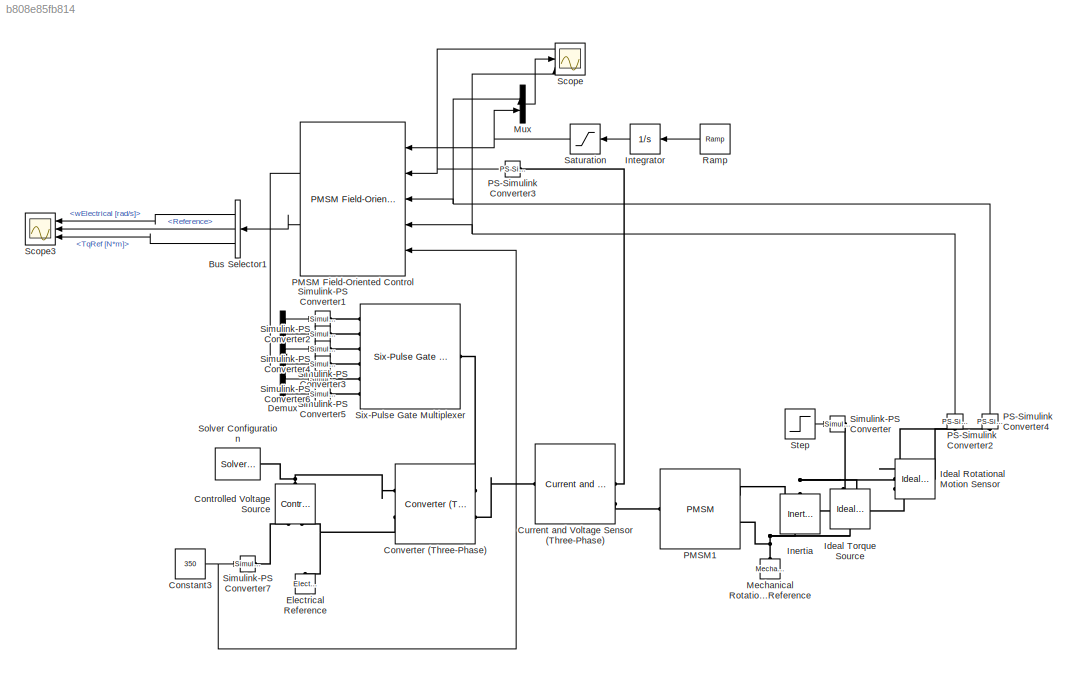
MODEL slx_b808e85fb814
KIND model
CONFIG AbsTol = auto
CONFIG EnableMultiTasking = off
CONFIG FixedStep = auto
CONFIG MaxStep = auto
CONFIG MinStep = auto
CONFIG RelTol = 1e-3
CONFIG SampleTimeConstraint = Unconstrained
CONFIG SolverName = VariableStepAuto
CONFIG StartTime = 0.0
CONFIG StopTime = 2
BLOCK [BusSelector] Bus Selector1
  NameLocation = top
  OutputSignals = wElectrical [rad/s],Reference,TqRef [N*m]
  Ports = [1, 3]
BLOCK [Constant] Constant3
  Value = 350
BLOCK [Reference] Controlled Voltage Source  REF=fl_lib/Electrical/Electrical Sources/Controlled Voltage
Source
  NameLocation = right
  Ports = [0, 0, 0, 0, 0, 1, 2]
  SourceBlock = fl_lib/Electrical/Electrical Sources/Controlled Voltage\nSource
  SourceProductBaseCode = SS
  SourceType = Controlled Voltage\nSource
BLOCK [Reference] Converter (Three-Phase)  REF=ee_lib/Semiconductors &
Converters/Converters/Converter
(Three-Phase)
  Ports = [0, 0, 0, 0, 0, 2, 2]
  SourceBlock = ee_lib/Semiconductors &\nConverters/Converters/Converter\n(Three-Phase)
  SourceProductBaseCode = PS
  SourceType = Converter\n(Three-Phase)
BLOCK [Reference] Current and Voltage Sensor (Three-Phase)  REF=ee_lib/Sensors &
Transducers/Current and Voltage
Sensor (Three-Phase)
  Ports = [0, 0, 0, 0, 0, 1, 3]
  SourceBlock = ee_lib/Sensors &\nTransducers/Current and Voltage\nSensor (Three-Phase)
  SourceProductBaseCode = PS
  SourceType = Current and Voltage\nSensor (Three-Phase)
BLOCK [Demux] Demux
  Outputs = 6
  Ports = [1, 6]
BLOCK [Reference] Electrical Reference  REF=fl_lib/Electrical/Electrical Elements/Electrical Reference
  NameLocation = right
  Ports = [0, 0, 0, 0, 0, 1]
  SourceBlock = fl_lib/Electrical/Electrical Elements/Electrical Reference
  SourceProductBaseCode = SS
  SourceType = Electrical Reference
BLOCK [Reference] Ideal Rotational Motion Sensor  REF=fl_lib/Mechanical/Mechanical Sensors/Ideal Rotational
Motion Sensor
  NameLocation = top
  Ports = [0, 0, 0, 0, 0, 1, 3]
  SourceBlock = fl_lib/Mechanical/Mechanical Sensors/Ideal Rotational\nMotion Sensor
  SourceProductBaseCode = SS
  SourceType = Ideal Rotational\nMotion Sensor
BLOCK [Reference] Ideal Torque Source  REF=fl_lib/Mechanical/Mechanical Sources/Ideal Torque Source
  NameLocation = left
  Ports = [0, 0, 0, 0, 0, 1, 2]
  SourceBlock = fl_lib/Mechanical/Mechanical Sources/Ideal Torque Source
  SourceProductBaseCode = SS
  SourceType = Ideal Torque Source
BLOCK [Reference] Inertia  REF=fl_lib/Mechanical/Rotational Elements/Inertia
  NameLocation = right
  Ports = [0, 0, 0, 0, 0, 1]
  SourceBlock = fl_lib/Mechanical/Rotational Elements/Inertia
  SourceProductBaseCode = SS
  SourceType = Inertia
BLOCK [Integrator] Integrator
  NameLocation = top
  Ports = [1, 1]
BLOCK [Reference] Mechanical Rotational Reference  REF=fl_lib/Mechanical/Rotational Elements/Mechanical
Rotational Reference
  NameLocation = right
  Ports = [0, 0, 0, 0, 0, 1]
  SourceBlock = fl_lib/Mechanical/Rotational Elements/Mechanical\nRotational Reference
  SourceProductBaseCode = SS
  SourceType = Mechanical\nRotational Reference
BLOCK [Mux] Mux
  DisplayOption = bar
  Inputs = 2
  Ports = [2, 1]
BLOCK [Reference] PMSM Field-Oriented Control  REF=eePmsmFieldOrientedControl/PMSM Field-Oriented
Control
  NameLocation = top
  Ports = [5, 2]
  SourceBlock = eePmsmFieldOrientedControl/PMSM Field-Oriented\nControl
  SourceProductBaseCode = PS
  SourceType = PMSM Field-Oriented Control
BLOCK [Reference] PMSM1  REF=ee_lib/Electromechanical/Permanent Magnet/PMSM
  Ports = [0, 0, 0, 0, 0, 1, 2]
  SourceBlock = ee_lib/Electromechanical/Permanent Magnet/PMSM
  SourceProductBaseCode = PS
  SourceType = PMSM
BLOCK [Reference] PS-Simulink Converter2  REF=nesl_utility/PS-Simulink
Converter
  NameLocation = right
  Ports = [0, 1, 0, 0, 0, 1]
  SourceBlock = nesl_utility/PS-Simulink\nConverter
  SourceProductBaseCode = PW,SS
  SourceType = PS-Simulink\nConverter
BLOCK [Reference] PS-Simulink Converter3  REF=nesl_utility/PS-Simulink
Converter
  NameLocation = top
  Ports = [0, 1, 0, 0, 0, 1]
  SourceBlock = nesl_utility/PS-Simulink\nConverter
  SourceProductBaseCode = PW,SS
  SourceType = PS-Simulink\nConverter
BLOCK [Reference] PS-Simulink Converter4  REF=nesl_utility/PS-Simulink
Converter
  NameLocation = right
  Ports = [0, 1, 0, 0, 0, 1]
  SourceBlock = nesl_utility/PS-Simulink\nConverter
  SourceProductBaseCode = PW,SS
  SourceType = PS-Simulink\nConverter
BLOCK [Reference] Ramp  REF=simulink/Sources/Ramp
  NameLocation = top
  Ports = [0, 1]
  SourceBlock = simulink/Sources/Ramp
  SourceProductBaseCode = SL
  SourceType = Ramp
BLOCK [Saturate] Saturation
  NameLocation = top
  UpperLimit = 300
BLOCK [Scope] Scope
  Floating = off
  NumInputPorts = 3
  Ports = [3]
  ScopeSpecificationString = Simulink.scopes.TimeScopeBlockCfg('CurrentConfiguration', extmgr.ConfigurationSet(extmgr.Configuration('Core','General UI',true,'FigureColor',[1 1 1]),extmgr.Configuration('Core','Source UI',true),extmgr.Configuration('Sources','WiredSimulink',true),extmgr.Configuration('Visuals','Time Domain',true,'SerializedDisplays',{struct('MinYLimReal','-23.02741','MaxYLimReal','23.13506','YLabelReal','','Min...<+3477ch>
BLOCK [Scope] Scope3
  Floating = off
  NameLocation = top
  NumInputPorts = 3
  Ports = [3]
  ScopeSpecificationString = Simulink.scopes.TimeScopeBlockCfg('CurrentConfiguration', extmgr.ConfigurationSet(extmgr.Configuration('Core','General UI',true),extmgr.Configuration('Core','Source UI',true),extmgr.Configuration('Sources','WiredSimulink',true,'DataLoggingVariableName','ScopeData2'),extmgr.Configuration('Visuals','Time Domain',true,'SerializedDisplays',{struct('MinYLimReal','-91.70593','MaxYLimReal','825.35341','Y...<+2806ch>
BLOCK [Reference] Simulink-PS Converter  REF=nesl_utility/Simulink-PS
Converter
  Ports = [1, 0, 0, 0, 0, 0, 1]
  SourceBlock = nesl_utility/Simulink-PS\nConverter
  SourceProductBaseCode = PW,SS
  SourceType = Simulink-PS\nConverter
BLOCK [Reference] Simulink-PS Converter1  REF=nesl_utility/Simulink-PS
Converter
  Ports = [1, 0, 0, 0, 0, 0, 1]
  SourceBlock = nesl_utility/Simulink-PS\nConverter
  SourceProductBaseCode = PW,SS
  SourceType = Simulink-PS\nConverter
BLOCK [Reference] Simulink-PS Converter2  REF=nesl_utility/Simulink-PS
Converter
  Ports = [1, 0, 0, 0, 0, 0, 1]
  SourceBlock = nesl_utility/Simulink-PS\nConverter
  SourceProductBaseCode = PW,SS
  SourceType = Simulink-PS\nConverter
BLOCK [Reference] Simulink-PS Converter3  REF=nesl_utility/Simulink-PS
Converter
  Ports = [1, 0, 0, 0, 0, 0, 1]
  SourceBlock = nesl_utility/Simulink-PS\nConverter
  SourceProductBaseCode = PW,SS
  SourceType = Simulink-PS\nConverter
BLOCK [Reference] Simulink-PS Converter4  REF=nesl_utility/Simulink-PS
Converter
  Ports = [1, 0, 0, 0, 0, 0, 1]
  SourceBlock = nesl_utility/Simulink-PS\nConverter
  SourceProductBaseCode = PW,SS
  SourceType = Simulink-PS\nConverter
BLOCK [Reference] Simulink-PS Converter5  REF=nesl_utility/Simulink-PS
Converter
  Ports = [1, 0, 0, 0, 0, 0, 1]
  SourceBlock = nesl_utility/Simulink-PS\nConverter
  SourceProductBaseCode = PW,SS
  SourceType = Simulink-PS\nConverter
BLOCK [Reference] Simulink-PS Converter6  REF=nesl_utility/Simulink-PS
Converter
  Ports = [1, 0, 0, 0, 0, 0, 1]
  SourceBlock = nesl_utility/Simulink-PS\nConverter
  SourceProductBaseCode = PW,SS
  SourceType = Simulink-PS\nConverter
BLOCK [Reference] Simulink-PS Converter7  REF=nesl_utility/Simulink-PS
Converter
  Ports = [1, 0, 0, 0, 0, 0, 1]
  SourceBlock = nesl_utility/Simulink-PS\nConverter
  SourceProductBaseCode = PW,SS
  SourceType = Simulink-PS\nConverter
BLOCK [Reference] Six-Pulse Gate Multiplexer  REF=ee_lib/Semiconductors &
Converters/Converters/Six-Pulse Gate
Multiplexer
  Ports = [0, 0, 0, 0, 0, 6, 1]
  SourceBlock = ee_lib/Semiconductors &\nConverters/Converters/Six-Pulse Gate\nMultiplexer
  SourceProductBaseCode = PS
  SourceType = Six-Pulse Gate\nMultiplexer
BLOCK [Reference] Solver Configuration  REF=nesl_utility/Solver
Configuration
  Ports = [0, 0, 0, 0, 0, 0, 1]
  SourceBlock = nesl_utility/Solver\nConfiguration
  SourceProductBaseCode = PW,SS
  SourceType = Solver\nConfiguration
BLOCK [Step] Step
  After = 0
  SampleTime = 0
  Time = 0
LINE Bus Selector1:1 -> Scope3:1
LINE Bus Selector1:2 -> Scope3:2
LINE Bus Selector1:3 -> Scope3:3
NET Constant3:1 -> PMSM Field-Oriented Control:5, Simulink-PS Converter7:1
LINE Demux:1 -> Simulink-PS Converter1:1
LINE Demux:2 -> Simulink-PS Converter2:1
LINE Demux:3 -> Simulink-PS Converter3:1
LINE Demux:4 -> Simulink-PS Converter4:1
LINE Demux:5 -> Simulink-PS Converter5:1
LINE Demux:6 -> Simulink-PS Converter6:1
LINE Integrator:1 -> Saturation:1
LINE Mux:1 -> Scope:2
LINE PMSM Field-Oriented Control:1 -> Demux:1
LINE PMSM Field-Oriented Control:2 -> Bus Selector1:1
NET PS-Simulink Converter2:1 -> PMSM Field-Oriented Control:4, Scope:3
NET PS-Simulink Converter3:1 -> PMSM Field-Oriented Control:2, Scope:1
NET PS-Simulink Converter4:1 -> Mux:1, PMSM Field-Oriented Control:3
LINE Ramp:1 -> Integrator:1
NET Saturation:1 -> Mux:2, PMSM Field-Oriented Control:1
LINE Step:1 -> Simulink-PS Converter:1
PNET net1: Controlled Voltage Source:LConn1 -- Converter (Three-Phase):RConn1 -- Solver Configuration:RConn1
PLINE Controlled Voltage Source:RConn1 -- Simulink-PS Converter7:RConn1
PNET net2: Controlled Voltage Source:RConn2 -- Converter (Three-Phase):RConn2 -- Electrical Reference:LConn1
PLINE Converter (Three-Phase):LConn1 -- Six-Pulse Gate Multiplexer:RConn1
PLINE Converter (Three-Phase):LConn2 -- Current and Voltage Sensor (Three-Phase):LConn1
PLINE Current and Voltage Sensor (Three-Phase):RConn2 -- PS-Simulink Converter3:LConn1
PLINE Current and Voltage Sensor (Three-Phase):RConn3 -- PMSM1:LConn1
PNET net3: Ideal Rotational Motion Sensor:LConn1 -- Ideal Torque Source:RConn2 -- Inertia:LConn1 -- PMSM1:RConn1
PNET net4: Ideal Rotational Motion Sensor:RConn1 -- Ideal Torque Source:LConn1 -- Mechanical Rotational Reference:LConn1 -- PMSM1:RConn2
PLINE Ideal Rotational Motion Sensor:RConn2 -- PS-Simulink Converter4:LConn1
PLINE Ideal Rotational Motion Sensor:RConn3 -- PS-Simulink Converter2:LConn1
PLINE Ideal Torque Source:RConn1 -- Simulink-PS Converter:RConn1
PLINE Simulink-PS Converter1:RConn1 -- Six-Pulse Gate Multiplexer:LConn1
PLINE Simulink-PS Converter2:RConn1 -- Six-Pulse Gate Multiplexer:LConn2
PLINE Simulink-PS Converter3:RConn1 -- Six-Pulse Gate Multiplexer:LConn3
PLINE Simulink-PS Converter4:RConn1 -- Six-Pulse Gate Multiplexer:LConn4
PLINE Simulink-PS Converter5:RConn1 -- Six-Pulse Gate Multiplexer:LConn5
PLINE Simulink-PS Converter6:RConn1 -- Six-Pulse Gate Multiplexer:LConn6
note: NET lines group one-source signal fan-out (src -> all destinations, sorted); 1:1 wires keep LINE; PNET lines group multi-terminal physical nets as a canonical sorted terminal list (undirected conserving connections); 2-terminal nets keep the pairwise PLINE form
